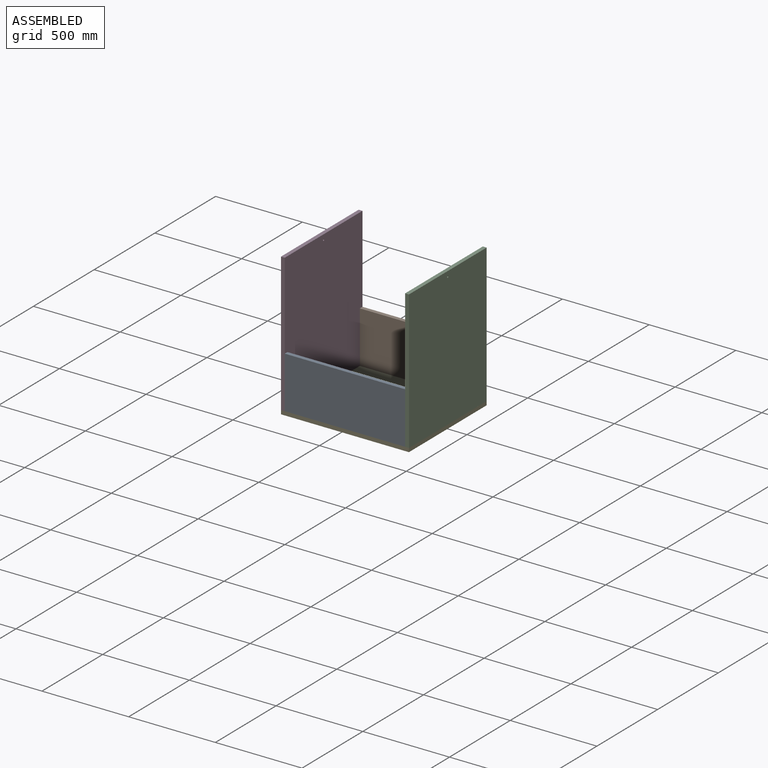
[diagram: assembled view]
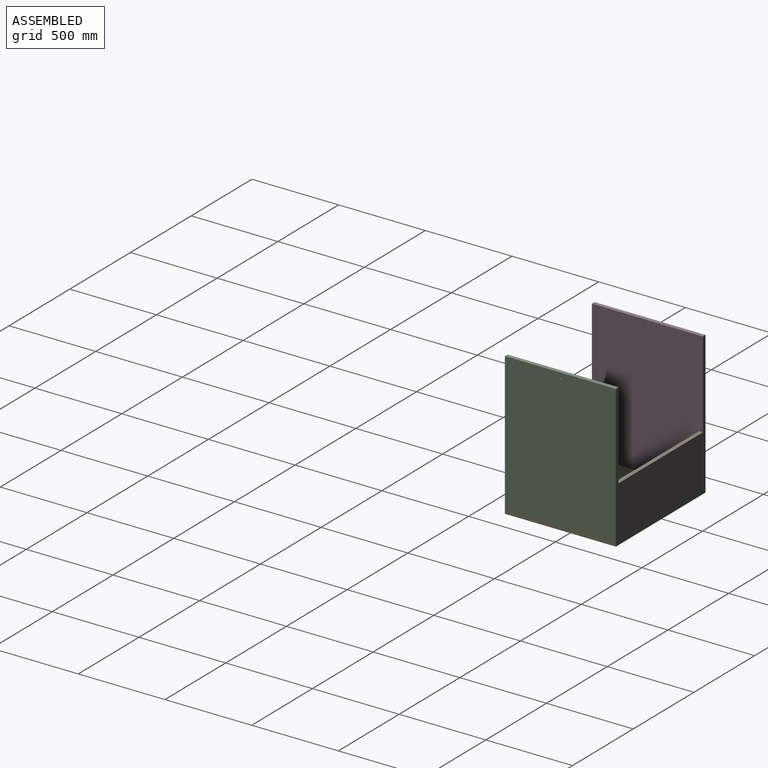
[diagram: assembled view, second angle]
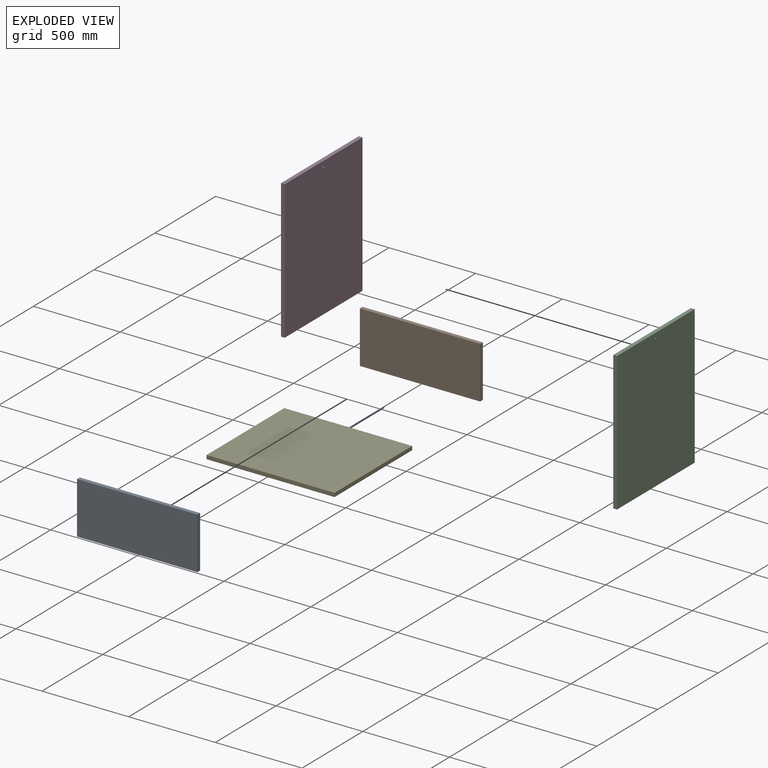
[diagram: exploded view]
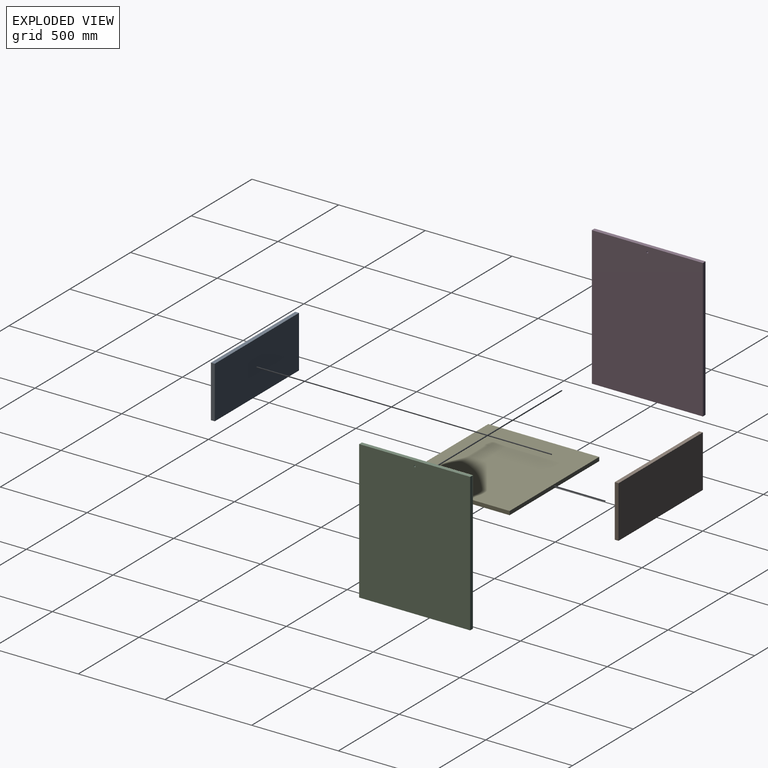
[diagram: exploded view, second angle]
ASSEMBLY  parts=5 mates=12
PART A: 6 faces, bbox 694x22x300 mm
  f0: plane 694x22mm, normal (0,0,1), area 15268mm2, adj f1,f3,f4,f5
  f1: plane 300x22mm, normal (-1,0,0), area 6600mm2, adj f0,f2,f4,f5
  f2: plane 694x22mm, normal (0,0,-1), area 15268mm2, adj f1,f3,f4,f5
  f3: plane 300x22mm, normal (1,0,0), area 6600mm2, adj f0,f2,f4,f5
  f4: plane 694x300mm, normal (0,-1,0), area 208200mm2, adj f0,f1,f2,f3
  f5: plane 694x300mm, normal (0,1,0), area 208200mm2, adj f0,f1,f2,f3
PART B: same geometry as A
PART C: 7 faces, bbox 640x22x800 mm
  f0: plane 800x22mm, normal (-1,0,0), area 17600mm2, adj f1,f4,f5,f6
  f1: plane 640x22mm, normal (0,0,-1), area 14080mm2, adj f0,f2,f5,f6
  f2: plane 800x22mm, normal (1,0,0), area 17600mm2, adj f1,f4,f5,f6
  f3: cylinder r=5mm len=22mm, axis (0,1,0), area 691.2mm2, adj f5,f6
  f4: plane 640x22mm, normal (0,0,1), area 14080mm2, adj f0,f2,f5,f6
  f5: plane 800x640mm, normal (0,-1,0), area 511921.5mm2, adj f0,f1,f2,f3,f4
  f6: plane 800x640mm, normal (0,1,0), area 511921.5mm2, adj f0,f1,f2,f3,f4
PART D: same geometry as C
PART E: 6 faces, bbox 738x640x22 mm
  f0: plane 738x22mm, normal (0,1,0), area 16236mm2, adj f1,f3,f4,f5
  f1: plane 640x22mm, normal (-1,0,0), area 14080mm2, adj f0,f2,f4,f5
  f2: plane 738x22mm, normal (0,-1,0), area 16236mm2, adj f1,f3,f4,f5
  f3: plane 640x22mm, normal (1,0,0), area 14080mm2, adj f0,f2,f4,f5
  f4: plane 738x640mm, normal (0,0,1), area 472320mm2, adj f0,f1,f2,f3
  f5: plane 738x640mm, normal (0,0,-1), area 472320mm2, adj f0,f1,f2,f3
PLACE A t=(34.93,-329.77,-314.84)mm
PLACE B t=(34.93,288.23,-314.84)mm
PLACE C rot(axis=(0,0,-1),90deg) t=(412,-49.16,-25.81)mm
PLACE D rot(axis=(0,0,-1),90deg) t=(-304,-49.16,-25.81)mm
PLACE E rot(axis=(0,0,-1),180deg) t=(66.4,-129.03,-452.36)mm
MATE planar C.f1 <-> E.f4  axis (0,0,-1) through (390,-31.77,-430.36)mm
MATE planar C.f6 <-> E.f1  axis (1,0,0) through (412,-31.77,-30.41)mm
MATE planar B.f1 <-> D.f6  axis (-1,0,0) through (-304,277.23,-280.36)mm
MATE planar D.f0 <-> B.f5  axis (0,1,0) through (-315,288.23,-30.36)mm
MATE planar A.f1 <-> D.f6  axis (-1,0,0) through (-304,-340.77,-280.36)mm
MATE planar D.f1 <-> E.f4  axis (0,0,-1) through (-315,-31.77,-430.36)mm
MATE planar E.f0 <-> A.f4  axis (0,-1,0) through (43,-351.77,-441.36)mm
MATE planar D.f5 <-> E.f3  axis (-1,0,0) through (-326,-31.77,-30.41)mm
MATE planar C.f2 <-> A.f4  axis (0,-1,0) through (401,-351.77,-30.36)mm
MATE planar B.f2 <-> E.f4  axis (0,0,-1) through (43,277.23,-430.36)mm
MATE planar A.f2 <-> E.f4  axis (0,0,-1) through (43,-340.77,-430.36)mm
MATE planar A.f4 <-> D.f2  axis (0,-1,0) through (43,-351.77,-280.36)mm
